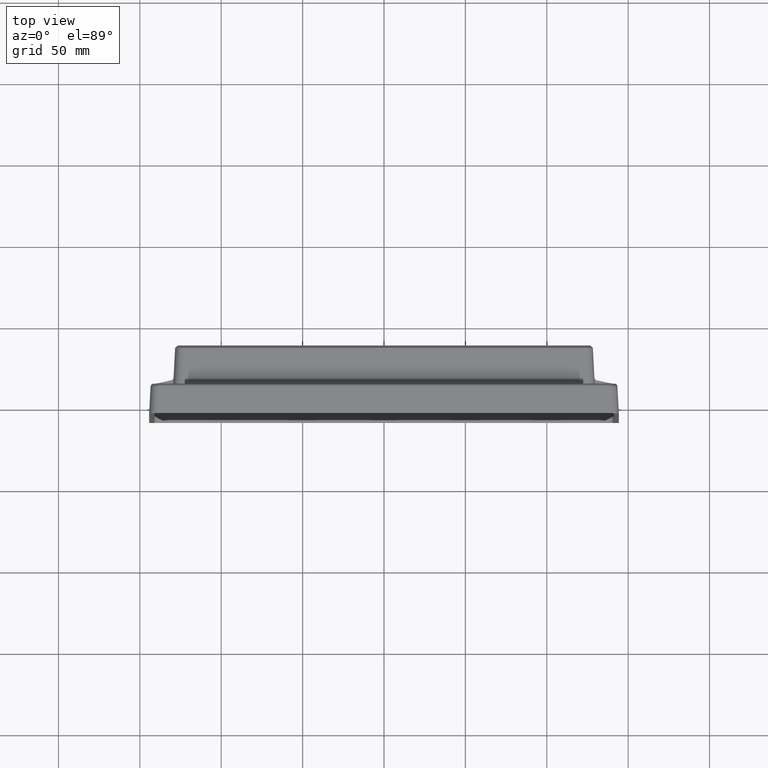
[diagram: clean part render]
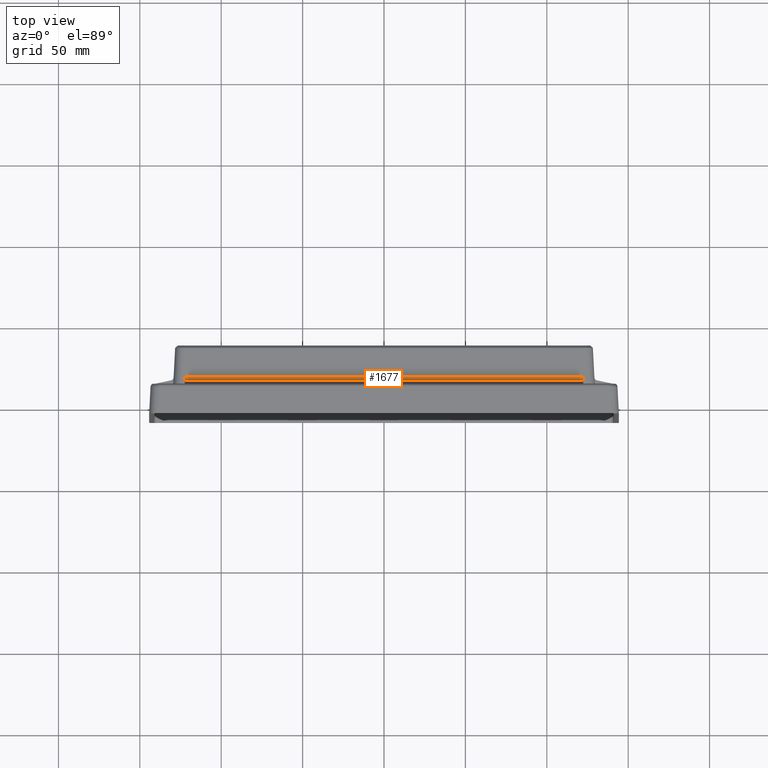
[diagram: same view with one face highlighted and labeled with its STEP entity id]
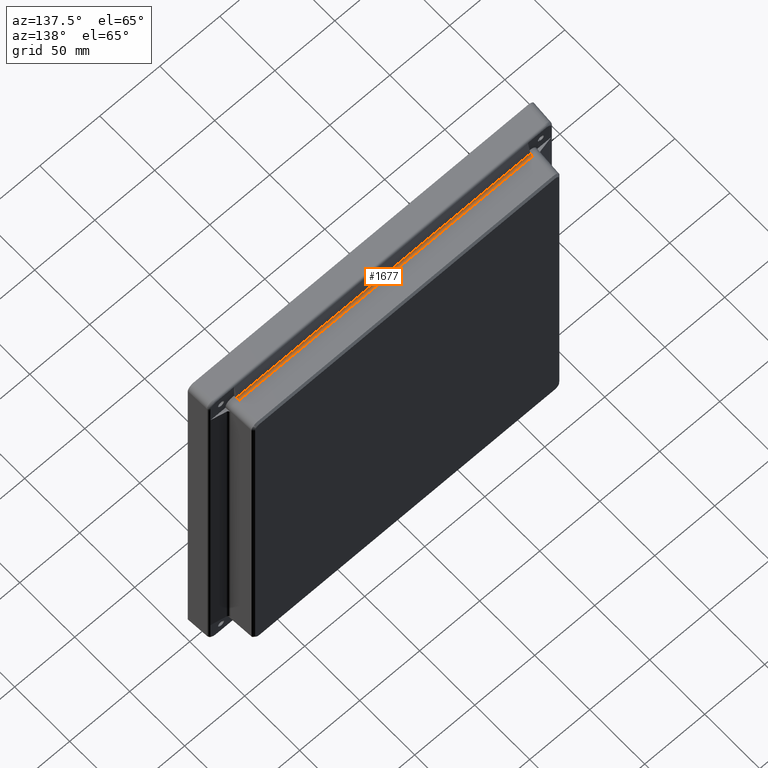
[diagram: same view with one face highlighted and labeled with its STEP entity id]
A machine part, top view. The second image highlights one B-rep face of the part: STEP entity #1677.
A second angle (auxiliary view) of the same face is appended — the face is thin or edge-on in the first view.
In plain terms, the highlighted cylindrical surface (edge-blend (fillet) strip) has radius 2 mm, axis along (1, -0, 0).
Its self-contained STEP definition (entity closure, byte-faithful):
#19 = VERTEX_POINT ( 'NONE', #669 ) ;
#106 = ORIENTED_EDGE ( 'NONE', *, *, #243, .F. ) ;
#243 = EDGE_CURVE ( 'NONE', #4825, #2477, #2564, .T. ) ;
#285 = CARTESIAN_POINT ( 'NONE',  ( -122.2972980587191600, 12.88596361156492500, 156.3985309053419700 ) ) ;
#303 = CARTESIAN_POINT ( 'NONE',  ( 122.2105159305508800, 14.54186526119735300, 155.7378931350274300 ) ) ;
#605 = CYLINDRICAL_SURFACE ( 'NONE', #2968, 1.999999999999998200 ) ;
#669 = CARTESIAN_POINT ( 'NONE',  ( -122.2105159305508000, 14.54186526119736600, 155.7378931350274600 ) ) ;
#1181 = VERTEX_POINT ( 'NONE', #1610 ) ;
#1347 = EDGE_CURVE ( 'NONE', #1181, #19, #3993, .T. ) ;
#1610 = CARTESIAN_POINT ( 'NONE',  ( -122.3075553951950800, 12.69024197221564200, 157.3193288229011000 ) ) ;
#1651 = EDGE_CURVE ( 'NONE', #2477, #1181, #2364, .T. ) ;
#1677 = ADVANCED_FACE ( 'NONE', ( #5309 ), #605, .F. ) ;
#1813 = CARTESIAN_POINT ( 'NONE',  ( -122.2908335138845900, 12.69024197221563800, 157.3193288229011000 ) ) ;
#1924 = LINE ( 'NONE', #5028, #3346 ) ;
#2081 = EDGE_CURVE ( 'NONE', #19, #4825, #1924, .T. ) ;
#2364 = LINE ( 'NONE', #1813, #3856 ) ;
#2430 = CARTESIAN_POINT ( 'NONE',  ( 122.3075553951950800, 12.69024197221562600, 157.3193288229011000 ) ) ;
#2477 = VERTEX_POINT ( 'NONE', #2430 ) ;
#2543 = ORIENTED_EDGE ( 'NONE', *, *, #1651, .F. ) ;
#2564 =( BOUNDED_CURVE ( )  B_SPLINE_CURVE ( 3, ( #5936, #3014, #3452, #2974 ),
 .UNSPECIFIED., .F., .F. ) 
 B_SPLINE_CURVE_WITH_KNOTS ( ( 4, 4 ),
 ( 4.764748857944503900, 6.073745796940254000 ),
 .UNSPECIFIED. ) 
 CURVE ( )  GEOMETRIC_REPRESENTATION_ITEM ( )  RATIONAL_B_SPLINE_CURVE ( ( 1.000000000000000000, 0.8622355601941561500, 0.8622355601941561500, 1.000000000000000000 ) ) 
 REPRESENTATION_ITEM ( '' )  );
#2590 = DIRECTION ( 'NONE',  ( 1.000000000000000000, -4.162603375814877000E-017, 2.181527989625487700E-018 ) ) ;
#2739 = CARTESIAN_POINT ( 'NONE',  ( -122.2597833820947100, 13.60178628403151400, 155.7871605865713900 ) ) ;
#2754 = CARTESIAN_POINT ( 'NONE',  ( -122.3075553951950800, 12.69024197221564200, 157.3193288229011000 ) ) ;
#2860 = DIRECTION ( 'NONE',  ( 0.0000000000000000000, 1.000000000000000000, 0.0000000000000000000 ) ) ;
#2895 = CARTESIAN_POINT ( 'NONE',  ( -143.3259222071695000, 14.64653717368325300, 157.7351522045366000 ) ) ;
#2968 = AXIS2_PLACEMENT_3D ( 'NONE', #2895, #5733, #2860 ) ;
#2974 = CARTESIAN_POINT ( 'NONE',  ( 122.3075553951950800, 12.69024197221562600, 157.3193288229011000 ) ) ;
#3014 = CARTESIAN_POINT ( 'NONE',  ( 122.2597833820948200, 13.60178628403150100, 155.7871605865713900 ) ) ;
#3213 = CARTESIAN_POINT ( 'NONE',  ( -122.2105159305508000, 14.54186526119736600, 155.7378931350274600 ) ) ;
#3230 = ORIENTED_EDGE ( 'NONE', *, *, #2081, .F. ) ;
#3346 = VECTOR ( 'NONE', #2590, 1000.000000000000000 ) ;
#3452 = CARTESIAN_POINT ( 'NONE',  ( 122.2972980587192200, 12.88596361156491300, 156.3985309053419400 ) ) ;
#3856 = VECTOR ( 'NONE', #5210, 1000.000000000000000 ) ;
#3993 =( BOUNDED_CURVE ( )  B_SPLINE_CURVE ( 3, ( #2754, #285, #2739, #3213 ),
 .UNSPECIFIED., .F., .F. ) 
 B_SPLINE_CURVE_WITH_KNOTS ( ( 4, 4 ),
 ( 3.351032163829108500, 4.660029102824860400 ),
 .UNSPECIFIED. ) 
 CURVE ( )  GEOMETRIC_REPRESENTATION_ITEM ( )  RATIONAL_B_SPLINE_CURVE ( ( 1.000000000000000000, 0.8622355601941557000, 0.8622355601941557000, 1.000000000000000000 ) ) 
 REPRESENTATION_ITEM ( '' )  );
#4825 = VERTEX_POINT ( 'NONE', #303 ) ;
#5028 = CARTESIAN_POINT ( 'NONE',  ( 122.2908335138846500, 14.54186526119735500, 155.7378931350274600 ) ) ;
#5210 = DIRECTION ( 'NONE',  ( -1.000000000000000000, 4.162603375814877000E-017, -2.181527989625487000E-018 ) ) ;
#5309 = FACE_OUTER_BOUND ( 'NONE', #5642, .T. ) ;
#5449 = ORIENTED_EDGE ( 'NONE', *, *, #1347, .F. ) ;
#5642 = EDGE_LOOP ( 'NONE', ( #106, #3230, #5449, #2543 ) ) ;
#5733 = DIRECTION ( 'NONE',  ( 1.000000000000000000, -4.162603375814877000E-017, 2.181527989625487700E-018 ) ) ;
#5936 = CARTESIAN_POINT ( 'NONE',  ( 122.2105159305508800, 14.54186526119735300, 155.7378931350274300 ) ) ;